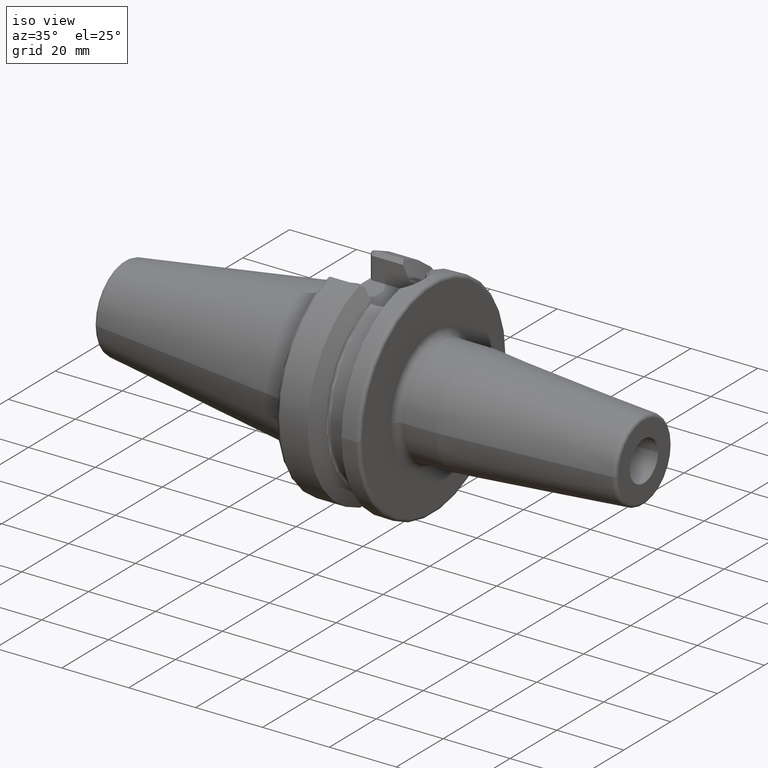
[diagram: clean part render]
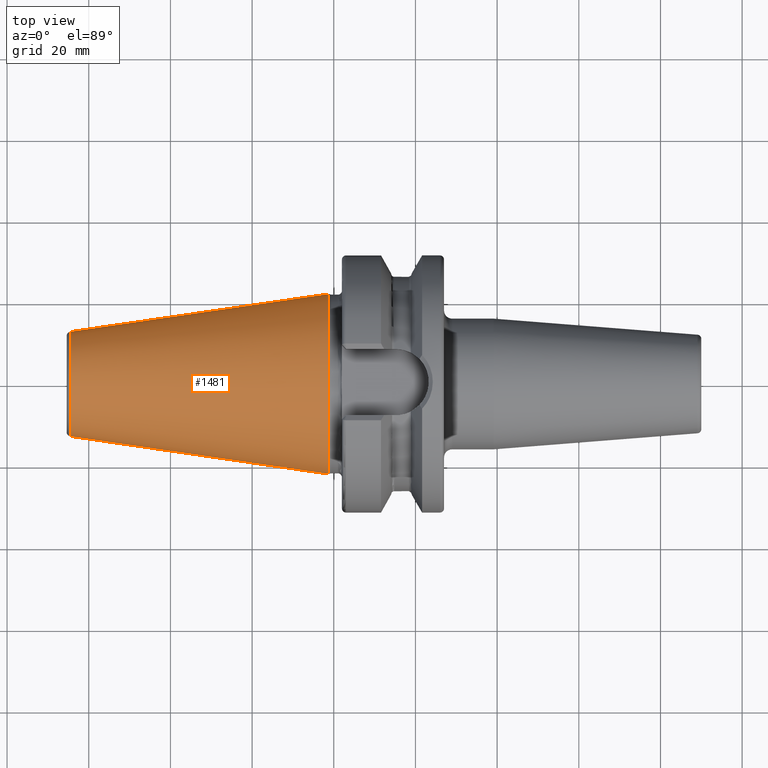
[diagram: tour spotlight — one face highlighted and labeled with its STEP entity id]
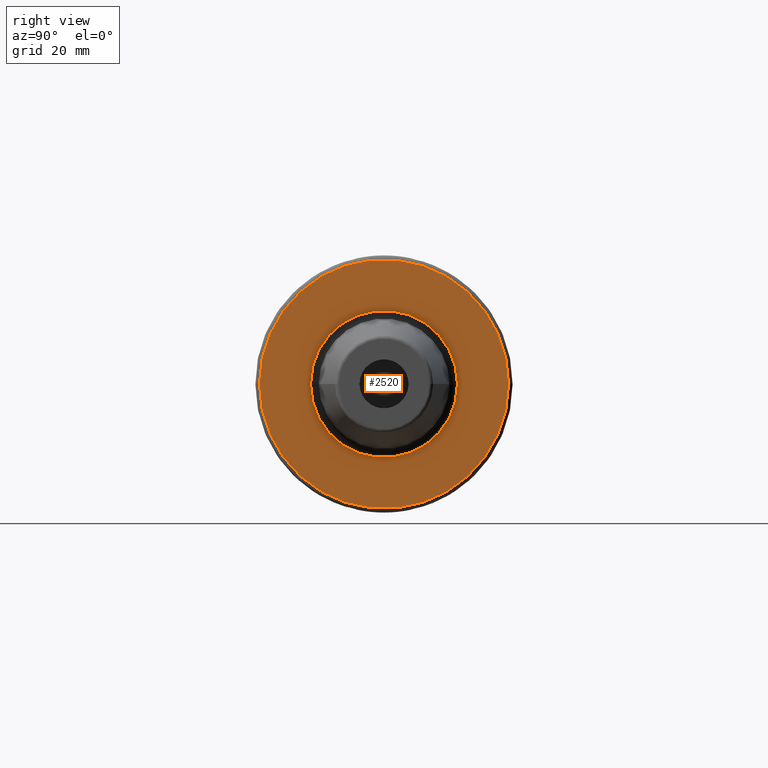
[diagram: tour spotlight — one face highlighted and labeled with its STEP entity id]
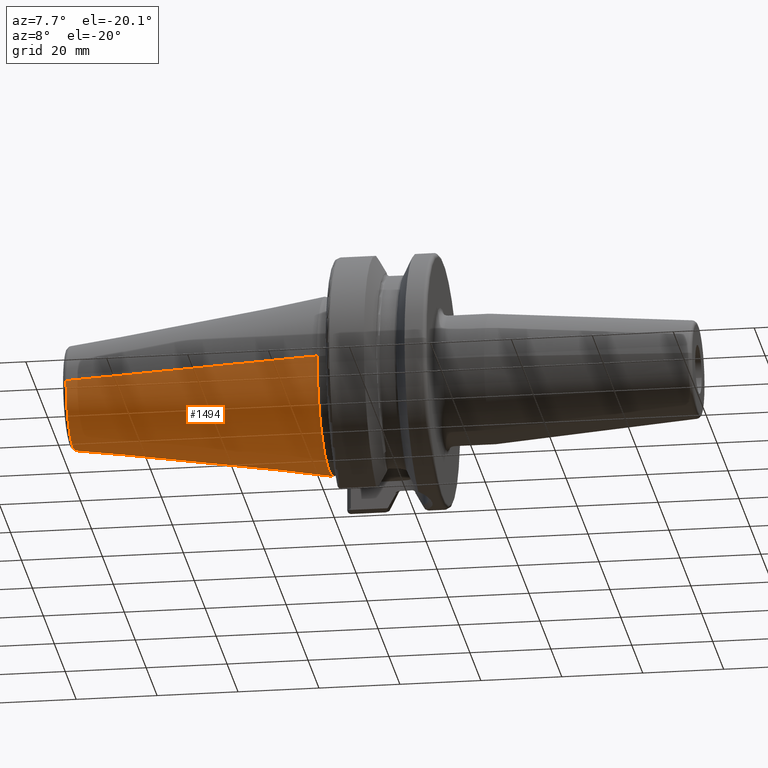
[diagram: tour spotlight — one face highlighted and labeled with its STEP entity id]
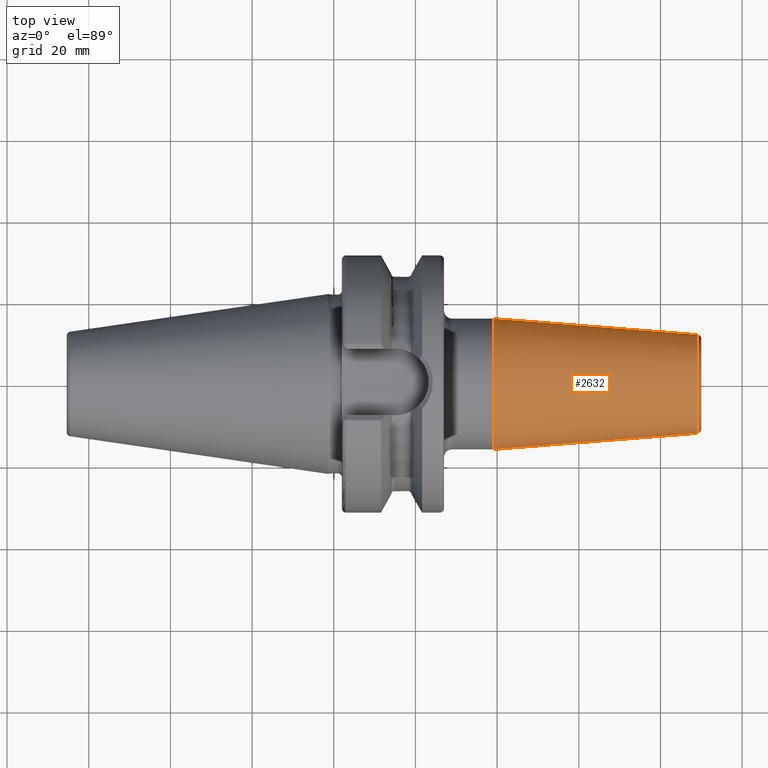
[diagram: tour spotlight — one face highlighted and labeled with its STEP entity id]
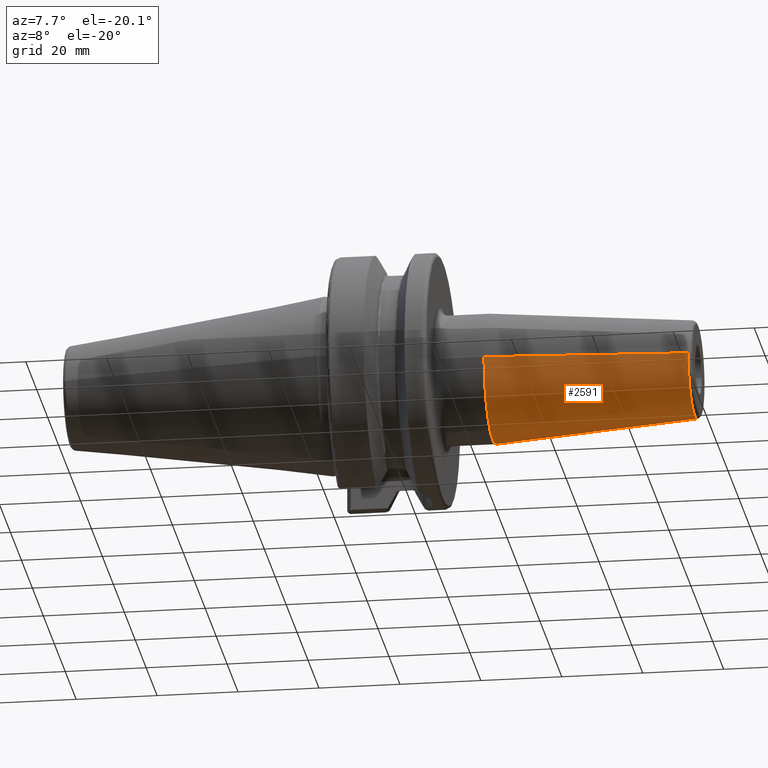
[diagram: tour spotlight — one face highlighted and labeled with its STEP entity id]
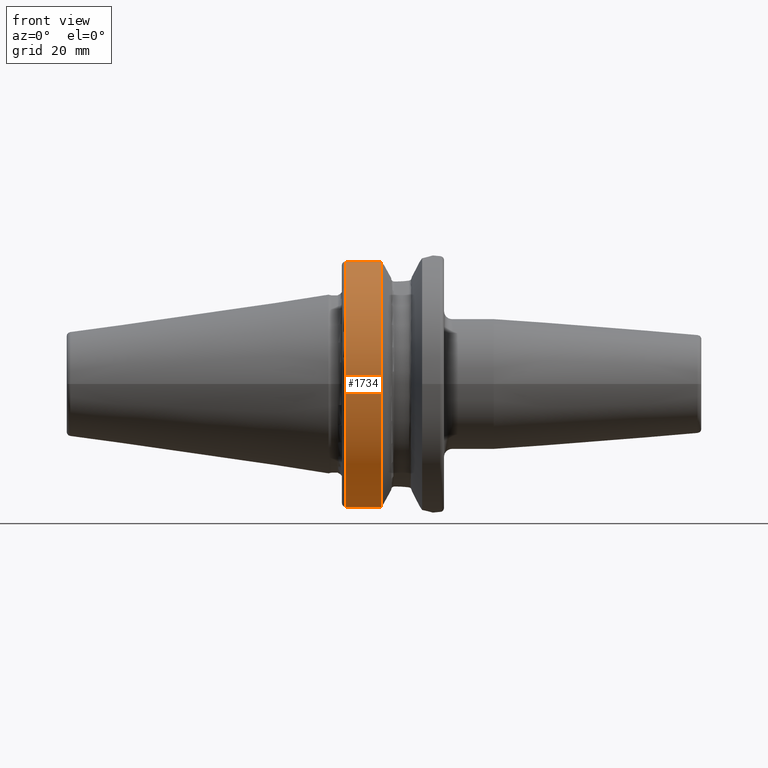
[diagram: tour spotlight — one face highlighted and labeled with its STEP entity id]
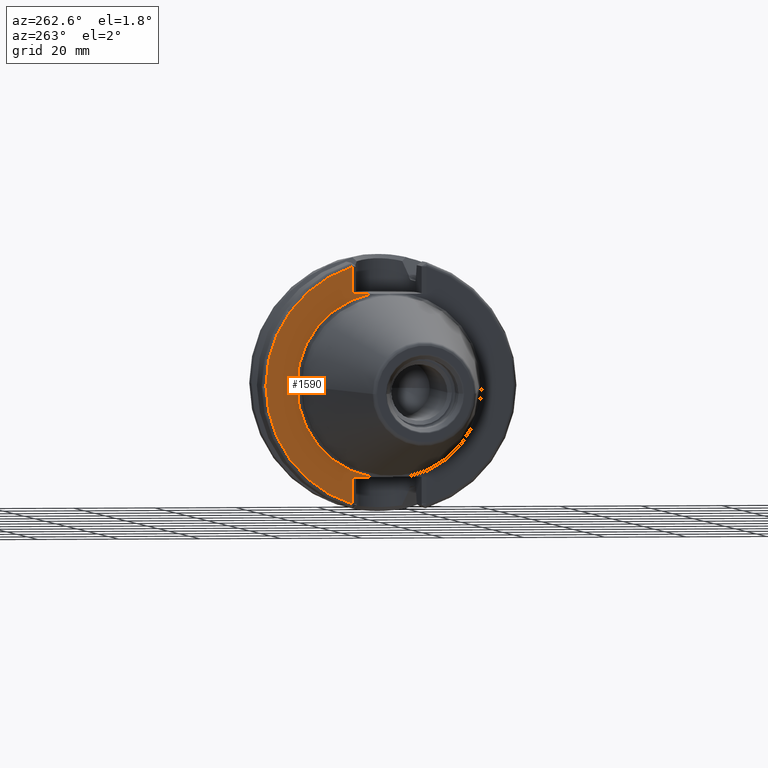
[diagram: tour spotlight — one face highlighted and labeled with its STEP entity id]
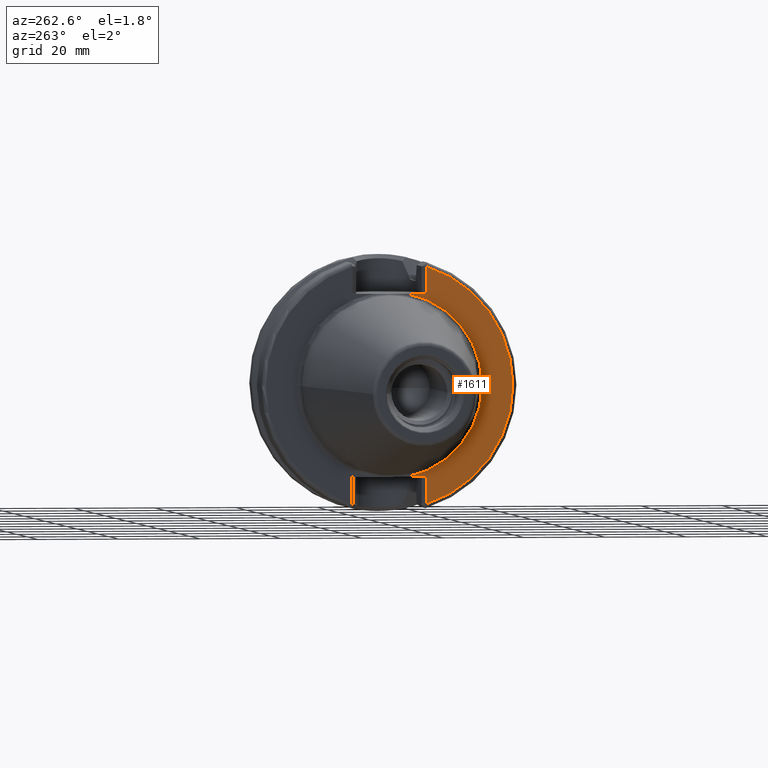
[diagram: tour spotlight — one face highlighted and labeled with its STEP entity id]
A machine part: a face-by-face anatomy tour. The part has 96 B-rep faces; the first image is the clean iso view, then the 8 largest visible faces are spotlighted one at a time (largest first), each with its STEP entity span.

Face 1 — top view, entity #1481. In plain terms, the highlighted conical surface has half-angle 8.298 deg.
Definition (entity closure, byte-faithful):
#37=CARTESIAN_POINT('',(-6.454431866917E1,0.E0,0.E0));
#38=DIRECTION('',(1.E0,0.E0,0.E0));
#39=DIRECTION('',(0.E0,1.E0,0.E0));
#40=AXIS2_PLACEMENT_3D('',#37,#38,#39);
#42=CARTESIAN_POINT('',(-1.266732031557E0,0.E0,0.E0));
#43=DIRECTION('',(1.E0,0.E0,0.E0));
#44=DIRECTION('',(0.E0,1.E0,0.E0));
#45=AXIS2_PLACEMENT_3D('',#42,#43,#44);
#47=DIRECTION('',(-9.895312636440E-1,-1.443186691705E-1,0.E0));
#48=VECTOR('',#47,6.394703124850E1);
#49=CARTESIAN_POINT('',(-1.266732031557E0,2.204025284980E1,0.E0));
#50=LINE('',#49,#48);
#51=DIRECTION('',(-9.895312636440E-1,1.443186691705E-1,0.E0));
#52=VECTOR('',#51,6.394703124850E1);
#53=CARTESIAN_POINT('',(-1.266732031557E0,-2.204025284980E1,0.E0));
#54=LINE('',#53,#52);
#1170=CARTESIAN_POINT('',(-6.454431866917E1,1.281150240261E1,0.E0));
#1172=VERTEX_POINT('',#1170);
#1174=CARTESIAN_POINT('',(-6.454431866917E1,-1.281150240261E1,0.E0));
#1176=VERTEX_POINT('',#1174);
#1389=CARTESIAN_POINT('',(-1.266732031557E0,2.204025284980E1,0.E0));
#1390=VERTEX_POINT('',#1389);
#1391=CARTESIAN_POINT('',(-1.266732031557E0,-2.204025284980E1,0.E0));
#1392=VERTEX_POINT('',#1391);
#1467=CARTESIAN_POINT('',(-3.290552535036E1,0.E0,0.E0));
#1468=DIRECTION('',(1.E0,0.E0,0.E0));
#1469=DIRECTION('',(0.E0,-1.E0,0.E0));
#1470=AXIS2_PLACEMENT_3D('',#1467,#1468,#1469);
#1471=CONICAL_SURFACE('',#1470,1.742587762621E1,8.297826828206E0);
#1473=ORIENTED_EDGE('',*,*,#1472,.F.);
#1475=ORIENTED_EDGE('',*,*,#1474,.T.);
#1477=ORIENTED_EDGE('',*,*,#1476,.T.);
#1478=ORIENTED_EDGE('',*,*,#1460,.F.);
#1479=EDGE_LOOP('',(#1473,#1475,#1477,#1478));
#1480=FACE_OUTER_BOUND('',#1479,.F.);
#1481=ADVANCED_FACE('',(#1480),#1471,.T.);
#41=CIRCLE('',#40,1.281150240261E1);
#46=CIRCLE('',#45,2.204025284980E1);
#1460=EDGE_CURVE('',#1172,#1176,#41,.T.);
#1472=EDGE_CURVE('',#1390,#1172,#50,.T.);
#1474=EDGE_CURVE('',#1390,#1392,#46,.T.);
#1476=EDGE_CURVE('',#1392,#1176,#54,.T.);

Face 2 — right view, entity #2520. In plain terms, the highlighted planar face has unit normal (1, 0, 0).
Definition (entity closure, byte-faithful):
#816=CARTESIAN_POINT('',(2.7E1,0.E0,0.E0));
#817=DIRECTION('',(1.E0,0.E0,0.E0));
#818=DIRECTION('',(0.E0,1.E0,0.E0));
#819=AXIS2_PLACEMENT_3D('',#816,#817,#818);
#831=CARTESIAN_POINT('',(2.7E1,0.E0,0.E0));
#832=DIRECTION('',(-1.E0,0.E0,0.E0));
#833=DIRECTION('',(0.E0,1.E0,0.E0));
#834=AXIS2_PLACEMENT_3D('',#831,#832,#833);
#836=CARTESIAN_POINT('',(2.7E1,0.E0,0.E0));
#837=DIRECTION('',(1.E0,0.E0,0.E0));
#838=DIRECTION('',(0.E0,-1.E0,0.E0));
#839=AXIS2_PLACEMENT_3D('',#836,#837,#838);
#841=CARTESIAN_POINT('',(2.7E1,0.E0,0.E0));
#842=DIRECTION('',(1.E0,0.E0,0.E0));
#843=DIRECTION('',(0.E0,1.E0,0.E0));
#844=AXIS2_PLACEMENT_3D('',#841,#842,#843);
#1304=CARTESIAN_POINT('',(2.7E1,3.04875E1,0.E0));
#1305=VERTEX_POINT('',#1304);
#1306=CARTESIAN_POINT('',(2.7E1,-3.04875E1,0.E0));
#1307=VERTEX_POINT('',#1306);
#1401=CARTESIAN_POINT('',(2.7E1,-1.8E1,-2.039594003153E-14));
#1402=CARTESIAN_POINT('',(2.7E1,1.8E1,1.019797001577E-14));
#1403=VERTEX_POINT('',#1401);
#1404=VERTEX_POINT('',#1402);
#2505=CARTESIAN_POINT('',(2.7E1,0.E0,0.E0));
#2506=DIRECTION('',(1.E0,0.E0,0.E0));
#2507=DIRECTION('',(0.E0,-1.E0,0.E0));
#2508=AXIS2_PLACEMENT_3D('',#2505,#2506,#2507);
#2509=PLANE('',#2508);
#2510=ORIENTED_EDGE('',*,*,#2500,.T.);
#2511=ORIENTED_EDGE('',*,*,#2484,.F.);
#2512=EDGE_LOOP('',(#2510,#2511));
#2513=FACE_OUTER_BOUND('',#2512,.F.);
#2515=ORIENTED_EDGE('',*,*,#2514,.T.);
#2517=ORIENTED_EDGE('',*,*,#2516,.T.);
#2518=EDGE_LOOP('',(#2515,#2517));
#2519=FACE_BOUND('',#2518,.F.);
#2520=ADVANCED_FACE('',(#2513,#2519),#2509,.T.);
#820=CIRCLE('',#819,3.04875E1);
#835=CIRCLE('',#834,3.04875E1);
#840=CIRCLE('',#839,1.8E1);
#845=CIRCLE('',#844,1.8E1);
#2484=EDGE_CURVE('',#1305,#1307,#820,.T.);
#2500=EDGE_CURVE('',#1305,#1307,#835,.T.);
#2514=EDGE_CURVE('',#1403,#1404,#840,.T.);
#2516=EDGE_CURVE('',#1404,#1403,#845,.T.);

Face 3 — auxiliary view, entity #1494. In plain terms, the highlighted conical surface has half-angle 8.298 deg.
Definition (entity closure, byte-faithful):
#32=CARTESIAN_POINT('',(-6.454431866917E1,0.E0,0.E0));
#33=DIRECTION('',(-1.E0,0.E0,0.E0));
#34=DIRECTION('',(0.E0,1.E0,0.E0));
#35=AXIS2_PLACEMENT_3D('',#32,#33,#34);
#47=DIRECTION('',(-9.895312636440E-1,-1.443186691705E-1,0.E0));
#48=VECTOR('',#47,6.394703124850E1);
#49=CARTESIAN_POINT('',(-1.266732031557E0,2.204025284980E1,0.E0));
#50=LINE('',#49,#48);
#51=DIRECTION('',(-9.895312636440E-1,1.443186691705E-1,0.E0));
#52=VECTOR('',#51,6.394703124850E1);
#53=CARTESIAN_POINT('',(-1.266732031557E0,-2.204025284980E1,0.E0));
#54=LINE('',#53,#52);
#55=CARTESIAN_POINT('',(-1.266732031557E0,0.E0,0.E0));
#56=DIRECTION('',(-1.E0,0.E0,0.E0));
#57=DIRECTION('',(0.E0,1.E0,0.E0));
#58=AXIS2_PLACEMENT_3D('',#55,#56,#57);
#1170=CARTESIAN_POINT('',(-6.454431866917E1,1.281150240261E1,0.E0));
#1172=VERTEX_POINT('',#1170);
#1174=CARTESIAN_POINT('',(-6.454431866917E1,-1.281150240261E1,0.E0));
#1176=VERTEX_POINT('',#1174);
#1389=CARTESIAN_POINT('',(-1.266732031557E0,2.204025284980E1,0.E0));
#1390=VERTEX_POINT('',#1389);
#1391=CARTESIAN_POINT('',(-1.266732031557E0,-2.204025284980E1,0.E0));
#1392=VERTEX_POINT('',#1391);
#1482=CARTESIAN_POINT('',(-3.290552535036E1,0.E0,0.E0));
#1483=DIRECTION('',(1.E0,0.E0,0.E0));
#1484=DIRECTION('',(0.E0,-1.E0,0.E0));
#1485=AXIS2_PLACEMENT_3D('',#1482,#1483,#1484);
#1486=CONICAL_SURFACE('',#1485,1.742587762621E1,8.297826828206E0);
#1487=ORIENTED_EDGE('',*,*,#1472,.T.);
#1488=ORIENTED_EDGE('',*,*,#1449,.T.);
#1489=ORIENTED_EDGE('',*,*,#1476,.F.);
#1491=ORIENTED_EDGE('',*,*,#1490,.F.);
#1492=EDGE_LOOP('',(#1487,#1488,#1489,#1491));
#1493=FACE_OUTER_BOUND('',#1492,.F.);
#1494=ADVANCED_FACE('',(#1493),#1486,.T.);
#36=CIRCLE('',#35,1.281150240261E1);
#59=CIRCLE('',#58,2.204025284980E1);
#1449=EDGE_CURVE('',#1172,#1176,#36,.T.);
#1472=EDGE_CURVE('',#1390,#1172,#50,.T.);
#1476=EDGE_CURVE('',#1392,#1176,#54,.T.);
#1490=EDGE_CURVE('',#1390,#1392,#59,.T.);

Face 4 — top view, entity #2632. In plain terms, the highlighted conical surface has half-angle 4.5 deg.
Definition (entity closure, byte-faithful):
#861=CARTESIAN_POINT('',(3.917518105530E1,0.E0,0.E0));
#862=DIRECTION('',(1.E0,0.E0,0.E0));
#863=DIRECTION('',(0.E0,1.E0,0.E0));
#864=AXIS2_PLACEMENT_3D('',#861,#862,#863);
#889=DIRECTION('',(-9.969173337331E-1,7.845909572785E-2,1.390755014573E-13));
#890=VECTOR('',#889,5.005758888107E1);
#891=CARTESIAN_POINT('',(8.907845909573E1,1.207252684207E1,
-6.959824840501E-12));
#892=LINE('',#891,#890);
#893=DIRECTION('',(-9.969173337331E-1,-7.845909572785E-2,-1.390679790529E-13));
#894=VECTOR('',#893,5.005758888107E1);
#895=CARTESIAN_POINT('',(8.907845909573E1,-1.207252684207E1,
6.959448287074E-12));
#896=LINE('',#895,#894);
#907=CARTESIAN_POINT('',(8.907845909573E1,0.E0,0.E0));
#908=DIRECTION('',(-1.E0,0.E0,0.E0));
#909=DIRECTION('',(0.E0,-1.E0,0.E0));
#910=AXIS2_PLACEMENT_3D('',#907,#908,#909);
#1409=CARTESIAN_POINT('',(3.917518105530E1,1.6E1,0.E0));
#1410=VERTEX_POINT('',#1409);
#1411=CARTESIAN_POINT('',(3.917518105530E1,-1.6E1,0.E0));
#1412=VERTEX_POINT('',#1411);
#1413=CARTESIAN_POINT('',(8.907845909573E1,1.207252684207E1,0.E0));
#1414=CARTESIAN_POINT('',(8.907845909573E1,-1.207252684207E1,0.E0));
#1415=VERTEX_POINT('',#1413);
#1416=VERTEX_POINT('',#1414);
#2621=CARTESIAN_POINT('',(6.412682007551E1,0.E0,0.E0));
#2622=DIRECTION('',(-1.E0,0.E0,0.E0));
#2623=DIRECTION('',(0.E0,1.E0,0.E0));
#2624=AXIS2_PLACEMENT_3D('',#2621,#2622,#2623);
#2625=CONICAL_SURFACE('',#2624,1.403626342104E1,4.5E0);
#2626=ORIENTED_EDGE('',*,*,#2612,.F.);
#2627=ORIENTED_EDGE('',*,*,#2587,.T.);
#2628=ORIENTED_EDGE('',*,*,#2557,.F.);
#2629=ORIENTED_EDGE('',*,*,#2584,.F.);
#2630=EDGE_LOOP('',(#2626,#2627,#2628,#2629));
#2631=FACE_OUTER_BOUND('',#2630,.F.);
#2632=ADVANCED_FACE('',(#2631),#2625,.T.);
#865=CIRCLE('',#864,1.6E1);
#911=CIRCLE('',#910,1.207252684207E1);
#2557=EDGE_CURVE('',#1410,#1412,#865,.T.);
#2584=EDGE_CURVE('',#1415,#1410,#892,.T.);
#2587=EDGE_CURVE('',#1416,#1412,#896,.T.);
#2612=EDGE_CURVE('',#1416,#1415,#911,.T.);

Face 5 — auxiliary view, entity #2591. In plain terms, the highlighted conical surface has half-angle 4.5 deg.
Definition (entity closure, byte-faithful):
#875=CARTESIAN_POINT('',(3.917518105530E1,0.E0,0.E0));
#876=DIRECTION('',(-1.E0,0.E0,0.E0));
#877=DIRECTION('',(0.E0,1.E0,0.E0));
#878=AXIS2_PLACEMENT_3D('',#875,#876,#877);
#884=CARTESIAN_POINT('',(8.907845909573E1,0.E0,0.E0));
#885=DIRECTION('',(-1.E0,0.E0,0.E0));
#886=DIRECTION('',(0.E0,1.E0,0.E0));
#887=AXIS2_PLACEMENT_3D('',#884,#885,#886);
#889=DIRECTION('',(-9.969173337331E-1,7.845909572785E-2,1.390755014573E-13));
#890=VECTOR('',#889,5.005758888107E1);
#891=CARTESIAN_POINT('',(8.907845909573E1,1.207252684207E1,
-6.959824840501E-12));
#892=LINE('',#891,#890);
#893=DIRECTION('',(-9.969173337331E-1,-7.845909572785E-2,-1.390679790529E-13));
#894=VECTOR('',#893,5.005758888107E1);
#895=CARTESIAN_POINT('',(8.907845909573E1,-1.207252684207E1,
6.959448287074E-12));
#896=LINE('',#895,#894);
#1409=CARTESIAN_POINT('',(3.917518105530E1,1.6E1,0.E0));
#1410=VERTEX_POINT('',#1409);
#1411=CARTESIAN_POINT('',(3.917518105530E1,-1.6E1,0.E0));
#1412=VERTEX_POINT('',#1411);
#1413=CARTESIAN_POINT('',(8.907845909573E1,1.207252684207E1,0.E0));
#1414=CARTESIAN_POINT('',(8.907845909573E1,-1.207252684207E1,0.E0));
#1415=VERTEX_POINT('',#1413);
#1416=VERTEX_POINT('',#1414);
#2577=CARTESIAN_POINT('',(6.412682007551E1,0.E0,0.E0));
#2578=DIRECTION('',(-1.E0,0.E0,0.E0));
#2579=DIRECTION('',(0.E0,1.E0,0.E0));
#2580=AXIS2_PLACEMENT_3D('',#2577,#2578,#2579);
#2581=CONICAL_SURFACE('',#2580,1.403626342104E1,4.5E0);
#2583=ORIENTED_EDGE('',*,*,#2582,.F.);
#2585=ORIENTED_EDGE('',*,*,#2584,.T.);
#2586=ORIENTED_EDGE('',*,*,#2571,.T.);
#2588=ORIENTED_EDGE('',*,*,#2587,.F.);
#2589=EDGE_LOOP('',(#2583,#2585,#2586,#2588));
#2590=FACE_OUTER_BOUND('',#2589,.F.);
#2591=ADVANCED_FACE('',(#2590),#2581,.T.);
#879=CIRCLE('',#878,1.6E1);
#888=CIRCLE('',#887,1.207252684207E1);
#2571=EDGE_CURVE('',#1410,#1412,#879,.T.);
#2582=EDGE_CURVE('',#1415,#1416,#888,.T.);
#2584=EDGE_CURVE('',#1415,#1410,#892,.T.);
#2587=EDGE_CURVE('',#1416,#1412,#896,.T.);

Face 6 — front view, entity #1734. In plain terms, the highlighted cylindrical surface (partial cylindrical patch) has radius 31.4875 mm, axis along (1, 0, 0).
Definition (entity closure, byte-faithful):
#210=CARTESIAN_POINT('',(1.157272253103E1,0.E0,0.E0));
#211=DIRECTION('',(1.E0,0.E0,0.E0));
#212=DIRECTION('',(0.E0,-2.983189831898E-1,9.544662300305E-1));
#213=AXIS2_PLACEMENT_3D('',#210,#211,#212);
#215=DIRECTION('',(9.999999999998E-1,-3.572441507671E-7,4.802508939409E-7));
#216=VECTOR('',#215,8.572722533299E0);
#217=CARTESIAN_POINT('',(2.999999997734E0,-9.052776400559E0,-3.015808496187E1));
#218=LINE('',#217,#216);
#219=CARTESIAN_POINT('',(3.E0,0.E0,0.E0));
#220=DIRECTION('',(-1.E0,0.E0,0.E0));
#221=DIRECTION('',(0.E0,-2.875039130802E-1,-9.577794631143E-1));
#222=AXIS2_PLACEMENT_3D('',#219,#220,#221);
#224=DIRECTION('',(-9.999999999911E-1,2.496639374553E-6,3.395432034657E-6));
#225=VECTOR('',#224,8.572722551500E0);
#226=CARTESIAN_POINT('',(1.157272253103E1,-9.393318983190E0,3.005375541808E1));
#227=LINE('',#226,#225);
#606=CARTESIAN_POINT('',(2.999999997734E0,-9.052776400559E0,-3.015808496187E1));
#1340=CARTESIAN_POINT('',(1.157272253103E1,-9.393318983190E0,3.005375541808E1));
#1341=CARTESIAN_POINT('',(1.157272253103E1,-9.052779463114E0,
-3.015808084481E1));
#1342=VERTEX_POINT('',#1340);
#1343=VERTEX_POINT('',#1341);
#1356=CARTESIAN_POINT('',(3.E0,-9.393347656107E0,3.005374645633E1));
#1357=VERTEX_POINT('',#1356);
#1378=VERTEX_POINT('',#606);
#1720=CARTESIAN_POINT('',(-7.002E1,0.E0,0.E0));
#1721=DIRECTION('',(1.E0,0.E0,0.E0));
#1722=DIRECTION('',(0.E0,-1.E0,0.E0));
#1723=AXIS2_PLACEMENT_3D('',#1720,#1721,#1722);
#1724=CYLINDRICAL_SURFACE('',#1723,3.14875E1);
#1725=ORIENTED_EDGE('',*,*,#1711,.T.);
#1727=ORIENTED_EDGE('',*,*,#1726,.F.);
#1729=ORIENTED_EDGE('',*,*,#1728,.T.);
#1731=ORIENTED_EDGE('',*,*,#1730,.F.);
#1732=EDGE_LOOP('',(#1725,#1727,#1729,#1731));
#1733=FACE_OUTER_BOUND('',#1732,.F.);
#1734=ADVANCED_FACE('',(#1733),#1724,.T.);
#214=CIRCLE('',#213,3.14875E1);
#223=CIRCLE('',#222,3.14875E1);
#1711=EDGE_CURVE('',#1342,#1343,#214,.T.);
#1726=EDGE_CURVE('',#1378,#1343,#218,.T.);
#1728=EDGE_CURVE('',#1378,#1357,#223,.T.);
#1730=EDGE_CURVE('',#1342,#1357,#227,.T.);

Face 7 — auxiliary view, entity #1590. In plain terms, the highlighted planar face has unit normal (1, 0, 0).
Definition (entity closure, byte-faithful):
#96=CARTESIAN_POINT('',(2.E0,0.E0,0.E0));
#97=DIRECTION('',(-1.E0,0.E0,0.E0));
#98=DIRECTION('',(0.E0,1.E0,0.E0));
#99=AXIS2_PLACEMENT_3D('',#96,#97,#98);
#127=DIRECTION('',(2.137863157138E-6,2.138092596513E-6,9.999999999954E-1));
#128=VECTOR('',#127,6.649288203884E0);
#129=CARTESIAN_POINT('',(1.999985784732E0,9.094985783206E0,-2.909928820385E1));
#130=LINE('',#129,#128);
#131=DIRECTION('',(-4.462834027332E-6,-4.463945839096E-6,9.999999999801E-1));
#132=VECTOR('',#131,6.649296399125E0);
#133=CARTESIAN_POINT('',(2.E0,9.095E0,2.245E1));
#134=LINE('',#133,#132);
#592=CARTESIAN_POINT('',(2.E0,0.E0,0.E0));
#593=DIRECTION('',(-1.E0,0.E0,0.E0));
#594=DIRECTION('',(0.E0,2.983190614061E-1,9.544662055839E-1));
#595=AXIS2_PLACEMENT_3D('',#592,#593,#594);
#688=DIRECTION('',(0.E0,1.E0,0.E0));
#689=VECTOR('',#688,4.706022328605E0);
#690=CARTESIAN_POINT('',(2.E0,4.388977671395E0,2.245E1));
#691=LINE('',#690,#689);
#709=CARTESIAN_POINT('',(2.E0,0.E0,0.E0));
#710=DIRECTION('',(1.E0,0.E0,0.E0));
#711=DIRECTION('',(0.E0,1.E0,0.E0));
#712=AXIS2_PLACEMENT_3D('',#709,#710,#711);
#746=DIRECTION('',(0.E0,-1.E0,0.E0));
#747=VECTOR('',#746,4.706022328605E0);
#748=CARTESIAN_POINT('',(2.E0,9.095E0,-2.245E1));
#749=LINE('',#748,#747);
#1242=CARTESIAN_POINT('',(2.E0,2.2875E1,0.E0));
#1244=VERTEX_POINT('',#1242);
#1312=CARTESIAN_POINT('',(2.E0,4.388977671395E0,2.245E1));
#1313=VERTEX_POINT('',#1312);
#1320=CARTESIAN_POINT('',(2.E0,4.388977671395E0,-2.245E1));
#1321=VERTEX_POINT('',#1320);
#1358=CARTESIAN_POINT('',(2.E0,9.095027762300E0,2.909928051090E1));
#1360=VERTEX_POINT('',#1358);
#1362=CARTESIAN_POINT('',(2.E0,9.095E0,2.245E1));
#1363=VERTEX_POINT('',#1362);
#1372=CARTESIAN_POINT('',(1.999985784732E0,9.094985783206E0,-2.909928820385E1));
#1373=CARTESIAN_POINT('',(2.E0,9.095E0,-2.245E1));
#1374=VERTEX_POINT('',#1372);
#1375=VERTEX_POINT('',#1373);
#1570=CARTESIAN_POINT('',(2.E0,0.E0,0.E0));
#1571=DIRECTION('',(1.E0,0.E0,0.E0));
#1572=DIRECTION('',(0.E0,-1.E0,0.E0));
#1573=AXIS2_PLACEMENT_3D('',#1570,#1571,#1572);
#1574=PLANE('',#1573);
#1576=ORIENTED_EDGE('',*,*,#1575,.F.);
#1578=ORIENTED_EDGE('',*,*,#1577,.F.);
#1580=ORIENTED_EDGE('',*,*,#1579,.F.);
#1582=ORIENTED_EDGE('',*,*,#1581,.F.);
#1584=ORIENTED_EDGE('',*,*,#1583,.F.);
#1585=ORIENTED_EDGE('',*,*,#1556,.T.);
#1587=ORIENTED_EDGE('',*,*,#1586,.F.);
#1588=EDGE_LOOP('',(#1576,#1578,#1580,#1582,#1584,#1585,#1587));
#1589=FACE_OUTER_BOUND('',#1588,.F.);
#1590=ADVANCED_FACE('',(#1589),#1574,.F.);
#100=CIRCLE('',#99,2.2875E1);
#596=CIRCLE('',#595,3.04875E1);
#713=CIRCLE('',#712,2.2875E1);
#1556=EDGE_CURVE('',#1244,#1321,#100,.T.);
#1575=EDGE_CURVE('',#1374,#1375,#130,.T.);
#1577=EDGE_CURVE('',#1360,#1374,#596,.T.);
#1579=EDGE_CURVE('',#1363,#1360,#134,.T.);
#1581=EDGE_CURVE('',#1313,#1363,#691,.T.);
#1583=EDGE_CURVE('',#1244,#1313,#713,.T.);
#1586=EDGE_CURVE('',#1375,#1321,#749,.T.);

Face 8 — auxiliary view, entity #1611. In plain terms, the highlighted planar face has unit normal (1, 0, 0).
Definition (entity closure, byte-faithful):
#111=CARTESIAN_POINT('',(2.E0,0.E0,0.E0));
#112=DIRECTION('',(-1.E0,0.E0,0.E0));
#113=DIRECTION('',(0.E0,-1.918678763451E-1,-9.814207650273E-1));
#114=AXIS2_PLACEMENT_3D('',#111,#112,#113);
#135=DIRECTION('',(-2.137863157207E-6,2.138092595446E-6,-9.999999999954E-1));
#136=VECTOR('',#135,6.649288203879E0);
#137=CARTESIAN_POINT('',(2.E0,-9.095E0,-2.245E1));
#138=LINE('',#137,#136);
#139=DIRECTION('',(4.462834027234E-6,-4.463945838797E-6,-9.999999999801E-1));
#140=VECTOR('',#139,6.649296399172E0);
#141=CARTESIAN_POINT('',(1.999970325294E0,-9.094970317901E0,2.909929639904E1));
#142=LINE('',#141,#140);
#597=CARTESIAN_POINT('',(1.999985784732E0,-9.094985783206E0,-2.909928820385E1));
#608=CARTESIAN_POINT('',(2.E0,0.E0,0.E0));
#609=DIRECTION('',(-1.E0,0.E0,0.E0));
#610=DIRECTION('',(0.E0,-2.983190208830E-1,-9.544662182495E-1));
#611=AXIS2_PLACEMENT_3D('',#608,#609,#610);
#684=DIRECTION('',(0.E0,1.E0,0.E0));
#685=VECTOR('',#684,4.706022328605E0);
#686=CARTESIAN_POINT('',(2.E0,-9.095E0,2.245E1));
#687=LINE('',#686,#685);
#725=CARTESIAN_POINT('',(2.E0,0.E0,0.E0));
#726=DIRECTION('',(1.E0,0.E0,0.E0));
#727=DIRECTION('',(0.E0,-1.918678763451E-1,9.814207650273E-1));
#728=AXIS2_PLACEMENT_3D('',#725,#726,#727);
#750=DIRECTION('',(0.E0,-1.E0,0.E0));
#751=VECTOR('',#750,4.706022328605E0);
#752=CARTESIAN_POINT('',(2.E0,-4.388977671395E0,-2.245E1));
#753=LINE('',#752,#751);
#1248=CARTESIAN_POINT('',(2.E0,-2.2875E1,0.E0));
#1250=VERTEX_POINT('',#1248);
#1314=CARTESIAN_POINT('',(2.E0,-4.388977671395E0,2.245E1));
#1315=VERTEX_POINT('',#1314);
#1322=CARTESIAN_POINT('',(2.E0,-4.388977671395E0,-2.245E1));
#1323=VERTEX_POINT('',#1322);
#1352=CARTESIAN_POINT('',(1.999970325294E0,-9.094970317901E0,2.909929639904E1));
#1353=CARTESIAN_POINT('',(2.E0,-9.095E0,2.245E1));
#1354=VERTEX_POINT('',#1352);
#1355=VERTEX_POINT('',#1353);
#1377=VERTEX_POINT('',#597);
#1379=CARTESIAN_POINT('',(2.E0,-9.095E0,-2.245E1));
#1380=VERTEX_POINT('',#1379);
#1591=CARTESIAN_POINT('',(2.E0,0.E0,0.E0));
#1592=DIRECTION('',(1.E0,0.E0,0.E0));
#1593=DIRECTION('',(0.E0,-1.E0,0.E0));
#1594=AXIS2_PLACEMENT_3D('',#1591,#1592,#1593);
#1595=PLANE('',#1594);
#1597=ORIENTED_EDGE('',*,*,#1596,.F.);
#1599=ORIENTED_EDGE('',*,*,#1598,.F.);
#1600=ORIENTED_EDGE('',*,*,#1563,.T.);
#1602=ORIENTED_EDGE('',*,*,#1601,.F.);
#1604=ORIENTED_EDGE('',*,*,#1603,.F.);
#1606=ORIENTED_EDGE('',*,*,#1605,.F.);
#1608=ORIENTED_EDGE('',*,*,#1607,.F.);
#1609=EDGE_LOOP('',(#1597,#1599,#1600,#1602,#1604,#1606,#1608));
#1610=FACE_OUTER_BOUND('',#1609,.F.);
#1611=ADVANCED_FACE('',(#1610),#1595,.F.);
#115=CIRCLE('',#114,2.2875E1);
#612=CIRCLE('',#611,3.04875E1);
#729=CIRCLE('',#728,2.2875E1);
#1563=EDGE_CURVE('',#1323,#1250,#115,.T.);
#1596=EDGE_CURVE('',#1380,#1377,#138,.T.);
#1598=EDGE_CURVE('',#1323,#1380,#753,.T.);
#1601=EDGE_CURVE('',#1315,#1250,#729,.T.);
#1603=EDGE_CURVE('',#1355,#1315,#687,.T.);
#1605=EDGE_CURVE('',#1354,#1355,#142,.T.);
#1607=EDGE_CURVE('',#1377,#1354,#612,.T.);